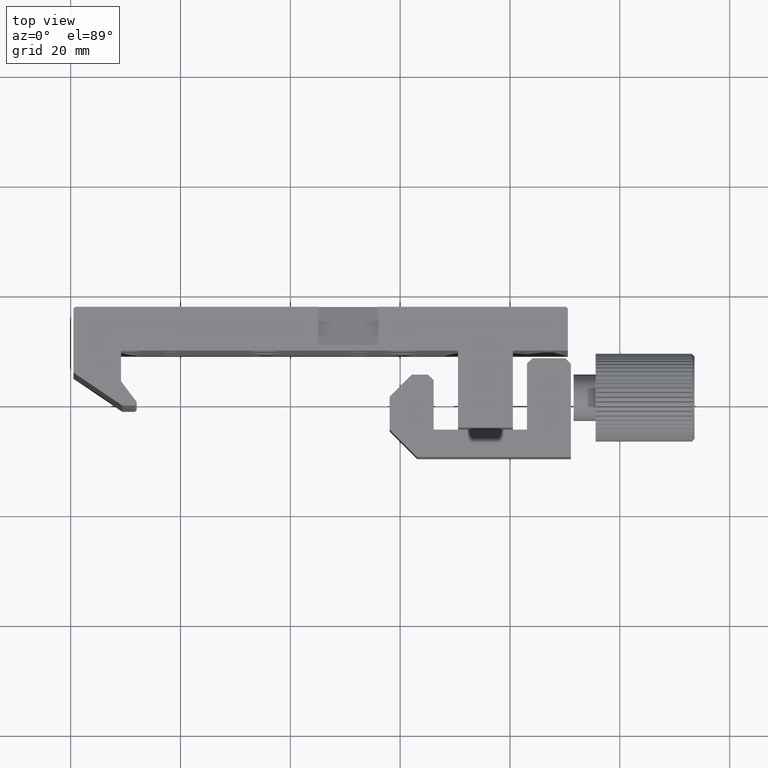
[diagram: clean part render]
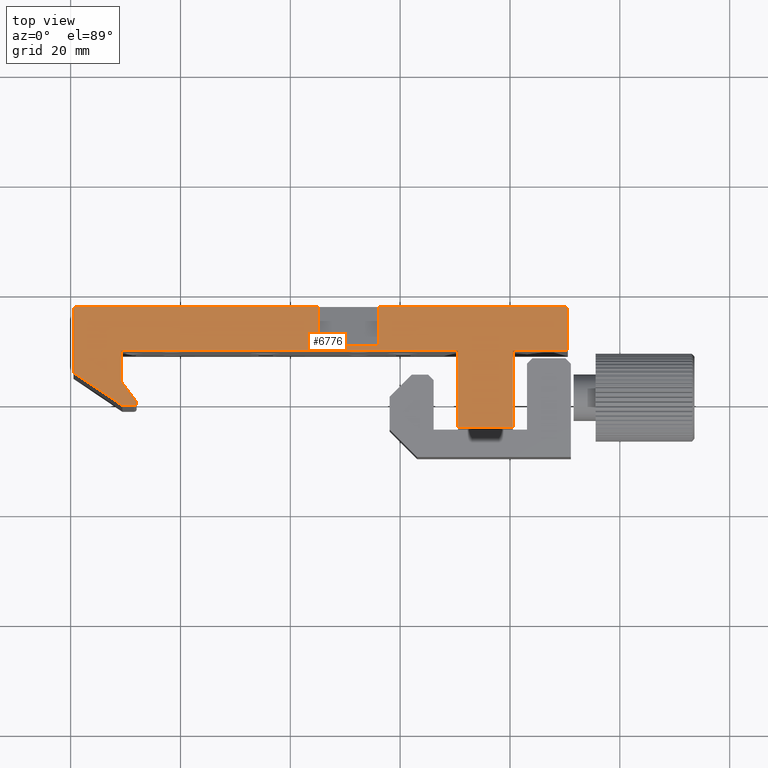
[diagram: same view with one face highlighted and labeled with its STEP entity id]
A machine part, top view. The second image highlights one B-rep face of the part: STEP entity #6776.
In plain terms, the highlighted planar face has unit normal (0, 0, 1).
Its self-contained STEP definition (entity closure, byte-faithful):
#731 = ORIENTED_EDGE ( 'NONE', *, *, #2520, .F. ) ;
#732 = ORIENTED_EDGE ( 'NONE', *, *, #2522, .T. ) ;
#733 = ORIENTED_EDGE ( 'NONE', *, *, #2512, .T. ) ;
#734 = ORIENTED_EDGE ( 'NONE', *, *, #2509, .T. ) ;
#735 = ORIENTED_EDGE ( 'NONE', *, *, #2506, .T. ) ;
#736 = ORIENTED_EDGE ( 'NONE', *, *, #2503, .T. ) ;
#737 = ORIENTED_EDGE ( 'NONE', *, *, #2500, .T. ) ;
#738 = ORIENTED_EDGE ( 'NONE', *, *, #2497, .T. ) ;
#739 = ORIENTED_EDGE ( 'NONE', *, *, #2523, .T. ) ;
#740 = ORIENTED_EDGE ( 'NONE', *, *, #2524, .T. ) ;
#741 = ORIENTED_EDGE ( 'NONE', *, *, #2493, .T. ) ;
#742 = ORIENTED_EDGE ( 'NONE', *, *, #2489, .T. ) ;
#743 = ORIENTED_EDGE ( 'NONE', *, *, #2486, .T. ) ;
#744 = ORIENTED_EDGE ( 'NONE', *, *, #2525, .T. ) ;
#745 = ORIENTED_EDGE ( 'NONE', *, *, #2526, .T. ) ;
#746 = ORIENTED_EDGE ( 'NONE', *, *, #2527, .T. ) ;
#747 = ORIENTED_EDGE ( 'NONE', *, *, #2528, .T. ) ;
#748 = ORIENTED_EDGE ( 'NONE', *, *, #2516, .F. ) ;
#749 = ORIENTED_EDGE ( 'NONE', *, *, #2518, .F. ) ;
#1162 = CARTESIAN_POINT ( 'NONE',  ( -70.57431584625358300, -0.9404695730432233200, 32.50000000000000000 ) ) ;
#1163 = CARTESIAN_POINT ( 'NONE',  ( -68.47252651145957700, -0.9404695730432233200, 32.50000000000000000 ) ) ;
#1164 = CARTESIAN_POINT ( 'NONE',  ( -68.47252651145957700, -0.4404695730432228700, 32.50000000000000000 ) ) ;
#1165 = DIRECTION ( 'NONE',  ( 0.0000000000000000000, 0.0000000000000000000, 1.000000000000000000 ) ) ;
#1166 = DIRECTION ( 'NONE',  ( 1.000000000000000000, 0.0000000000000000000, 0.0000000000000000000 ) ) ;
#1168 = CARTESIAN_POINT ( 'NONE',  ( -79.46968165733007100, 5.059530426956775400, 32.50000000000000000 ) ) ;
#1170 = DIRECTION ( 'NONE',  ( 1.000000000000000000, -0.0000000000000000000, -0.0000000000000000000 ) ) ;
#1175 = DIRECTION ( 'NONE',  ( 0.8290375725550430700, -0.5591929034707448000, -0.0000000000000000000 ) ) ;
#1180 = DIRECTION ( 'NONE',  ( -0.0000000000000000000, -1.000000000000000000, -0.0000000000000000000 ) ) ;
#1188 = CARTESIAN_POINT ( 'NONE',  ( -23.96968165733006700, 17.05953042695677600, 32.50000000000000000 ) ) ;
#1190 = CARTESIAN_POINT ( 'NONE',  ( -78.96968165733007100, 16.55953042695677600, 32.50000000000000000 ) ) ;
#1191 = DIRECTION ( 'NONE',  ( 0.0000000000000000000, 0.0000000000000000000, 1.000000000000000000 ) ) ;
#1192 = DIRECTION ( 'NONE',  ( 1.000000000000000000, 0.0000000000000000000, 0.0000000000000000000 ) ) ;
#1194 = CARTESIAN_POINT ( 'NONE',  ( -34.96968165733007100, 10.05953042695676900, 32.50000000000000000 ) ) ;
#1198 = DIRECTION ( 'NONE',  ( -0.0000000000000000000, 1.000000000000000000, -0.0000000000000000000 ) ) ;
#1200 = DIRECTION ( 'NONE',  ( -1.000000000000000000, -0.0000000000000000000, -0.0000000000000000000 ) ) ;
#1202 = DIRECTION ( 'NONE',  ( 1.000000000000000000, 0.0000000000000000000, 0.0000000000000000000 ) ) ;
#1203 = CARTESIAN_POINT ( 'NONE',  ( -78.96968165733007100, 17.05953042695677600, 32.50000000000000000 ) ) ;
#1205 = CARTESIAN_POINT ( 'NONE',  ( -34.96968165733007100, 17.05953042695677600, 32.50000000000000000 ) ) ;
#1206 = DIRECTION ( 'NONE',  ( 1.239088197126289600E-016, -1.000000000000000000, 0.0000000000000000000 ) ) ;
#1209 = CARTESIAN_POINT ( 'NONE',  ( -78.96968165733007100, 17.05953042695677600, 32.50000000000000000 ) ) ;
#1210 = DIRECTION ( 'NONE',  ( -1.000000000000000000, -0.0000000000000000000, -0.0000000000000000000 ) ) ;
#1211 = CARTESIAN_POINT ( 'NONE',  ( -70.81968165733007900, 9.059530426956767400, 32.50000000000000000 ) ) ;
#1212 = DIRECTION ( 'NONE',  ( -0.0000000000000000000, 1.000000000000000000, -0.0000000000000000000 ) ) ;
#1213 = CARTESIAN_POINT ( 'NONE',  ( -9.469681657330072600, 9.059530426956774500, 32.50000000000000000 ) ) ;
#1214 = DIRECTION ( 'NONE',  ( 1.000000000000000000, 1.131034051166622500E-016, -0.0000000000000000000 ) ) ;
#1215 = CARTESIAN_POINT ( 'NONE',  ( 10.53031834266993100, 9.059530426956774500, 32.50000000000000000 ) ) ;
#2486 = EDGE_CURVE ( 'NONE', #5945, #5951, #4555, .T. ) ;
#2489 = EDGE_CURVE ( 'NONE', #5942, #5945, #4560, .T. ) ;
#2493 = EDGE_CURVE ( 'NONE', #5941, #5942, #4564, .T. ) ;
#2497 = EDGE_CURVE ( 'NONE', #5937, #5947, #4577, .T. ) ;
#2500 = EDGE_CURVE ( 'NONE', #5934, #5937, #4579, .T. ) ;
#2503 = EDGE_CURVE ( 'NONE', #5932, #5934, #4585, .T. ) ;
#2506 = EDGE_CURVE ( 'NONE', #5930, #5932, #4589, .T. ) ;
#2509 = EDGE_CURVE ( 'NONE', #5928, #5930, #4595, .T. ) ;
#2512 = EDGE_CURVE ( 'NONE', #5926, #5928, #4601, .T. ) ;
#2516 = EDGE_CURVE ( 'NONE', #5922, #5927, #7196, .T. ) ;
#2518 = EDGE_CURVE ( 'NONE', #5925, #5922, #7199, .T. ) ;
#2520 = EDGE_CURVE ( 'NONE', #5919, #5925, #7208, .T. ) ;
#2522 = EDGE_CURVE ( 'NONE', #5919, #5926, #7212, .T. ) ;
#2523 = EDGE_CURVE ( 'NONE', #5947, #5921, #7214, .T. ) ;
#2524 = EDGE_CURVE ( 'NONE', #5921, #5941, #7216, .T. ) ;
#2525 = EDGE_CURVE ( 'NONE', #5951, #5917, #7218, .T. ) ;
#2526 = EDGE_CURVE ( 'NONE', #5917, #5916, #7220, .T. ) ;
#2527 = EDGE_CURVE ( 'NONE', #5916, #5915, #7222, .T. ) ;
#2528 = EDGE_CURVE ( 'NONE', #5915, #5927, #7224, .T. ) ;
#2757 = CARTESIAN_POINT ( 'NONE',  ( 10.53031834266993100, 16.55953042695677300, 32.50000000000000000 ) ) ;
#2768 = CARTESIAN_POINT ( 'NONE',  ( 10.03031834266993100, 17.05953042695677600, 32.50000000000000000 ) ) ;
#2769 = CARTESIAN_POINT ( 'NONE',  ( 10.53031834266993100, 9.059530426956774500, 32.50000000000000000 ) ) ;
#2770 = CARTESIAN_POINT ( 'NONE',  ( -34.96968165733007100, 17.05953042695677600, 32.50000000000000000 ) ) ;
#2771 = CARTESIAN_POINT ( 'NONE',  ( -70.81968165733007900, 9.059530426956767400, 32.50000000000000000 ) ) ;
#2772 = CARTESIAN_POINT ( 'NONE',  ( -23.96968165733006700, 10.05953042695676900, 32.50000000000000000 ) ) ;
#2775 = CARTESIAN_POINT ( 'NONE',  ( -34.96968165733007100, 10.05953042695676900, 32.50000000000000000 ) ) ;
#2776 = CARTESIAN_POINT ( 'NONE',  ( -78.96968165733007100, 17.05953042695677600, 32.50000000000000000 ) ) ;
#2777 = CARTESIAN_POINT ( 'NONE',  ( -23.96968165733006700, 17.05953042695677600, 32.50000000000000000 ) ) ;
#3874 = DIRECTION ( 'NONE',  ( 1.000000000000000000, 1.734723475976806800E-016, -0.0000000000000000000 ) ) ;
#3875 = CARTESIAN_POINT ( 'NONE',  ( 10.53031834266993100, 16.55953042695677300, 32.50000000000000000 ) ) ;
#3876 = DIRECTION ( 'NONE',  ( -0.0000000000000000000, 1.000000000000000000, -0.0000000000000000000 ) ) ;
#3877 = CARTESIAN_POINT ( 'NONE',  ( 10.03031834266993100, 16.55953042695677600, 32.50000000000000000 ) ) ;
#3878 = DIRECTION ( 'NONE',  ( 0.0000000000000000000, 0.0000000000000000000, 1.000000000000000000 ) ) ;
#3879 = DIRECTION ( 'NONE',  ( 1.000000000000000000, 0.0000000000000000000, 0.0000000000000000000 ) ) ;
#4161 = FACE_OUTER_BOUND ( 'NONE', #5745, .T. ) ;
#4555 = LINE ( 'NONE', #7040, #4561 ) ;
#4560 = LINE ( 'NONE', #7050, #4567 ) ;
#4561 = VECTOR ( 'NONE', #7051, 1000.000000000000000 ) ;
#4564 = LINE ( 'NONE', #7066, #4572 ) ;
#4567 = VECTOR ( 'NONE', #7057, 1000.000000000000000 ) ;
#4572 = VECTOR ( 'NONE', #7055, 1000.000000000000000 ) ;
#4577 = LINE ( 'NONE', #7061, #4582 ) ;
#4579 = CIRCLE ( 'NONE', #7172, 0.5000000000000004400 ) ;
#4582 = VECTOR ( 'NONE', #7072, 1000.000000000000100 ) ;
#4585 = LINE ( 'NONE', #1163, #4592 ) ;
#4589 = LINE ( 'NONE', #1162, #4598 ) ;
#4592 = VECTOR ( 'NONE', #1170, 1000.000000000000000 ) ;
#4595 = LINE ( 'NONE', #1168, #4604 ) ;
#4598 = VECTOR ( 'NONE', #1175, 1000.000000000000000 ) ;
#4601 = CIRCLE ( 'NONE', #7174, 0.5000000000000004400 ) ;
#4604 = VECTOR ( 'NONE', #1180, 1000.000000000000000 ) ;
#4903 = CARTESIAN_POINT ( 'NONE',  ( -79.46968165733007100, 5.059530426956775400, 32.50000000000000000 ) ) ;
#4905 = CARTESIAN_POINT ( 'NONE',  ( -70.57431584625358300, -0.9404695730432233200, 32.50000000000000000 ) ) ;
#4907 = CARTESIAN_POINT ( 'NONE',  ( -68.47252651145957700, -0.9404695730432233200, 32.50000000000000000 ) ) ;
#4910 = CARTESIAN_POINT ( 'NONE',  ( -68.07320875643593200, -0.1395620614671917700, 32.50000000000000000 ) ) ;
#4914 = CARTESIAN_POINT ( 'NONE',  ( -9.469681657330072600, 9.059530426956774500, 32.50000000000000000 ) ) ;
#4915 = CARTESIAN_POINT ( 'NONE',  ( -9.469681657330072600, -4.940469573043223800, 32.50000000000000000 ) ) ;
#4918 = CARTESIAN_POINT ( 'NONE',  ( 0.5303183426699289400, -4.940469573043223800, 32.50000000000000000 ) ) ;
#4920 = CARTESIAN_POINT ( 'NONE',  ( -70.81968165733007900, 3.505130579385170400, 32.50000000000000000 ) ) ;
#4924 = CARTESIAN_POINT ( 'NONE',  ( 0.5303183426699289400, 9.059530426956772700, 32.50000000000000000 ) ) ;
#5160 = CARTESIAN_POINT ( 'NONE',  ( -68.47252651145957700, -0.4404695730432228700, 32.50000000000000000 ) ) ;
#5167 = PLANE ( 'NONE',  #5199 ) ;
#5169 = DIRECTION ( 'NONE',  ( 0.0000000000000000000, 0.0000000000000000000, 1.000000000000000000 ) ) ;
#5170 = DIRECTION ( 'NONE',  ( 1.000000000000000000, 0.0000000000000000000, -0.0000000000000000000 ) ) ;
#5199 = AXIS2_PLACEMENT_3D ( 'NONE', #5160, #5169, #5170 ) ;
#5745 = EDGE_LOOP ( 'NONE', ( #731, #732, #733, #734, #735, #736, #737, #738, #739, #740, #741, #742, #743, #744, #745, #746, #747, #748, #749 ) ) ;
#5915 = VERTEX_POINT ( 'NONE', #2768 ) ;
#5916 = VERTEX_POINT ( 'NONE', #2757 ) ;
#5917 = VERTEX_POINT ( 'NONE', #2769 ) ;
#5919 = VERTEX_POINT ( 'NONE', #2770 ) ;
#5921 = VERTEX_POINT ( 'NONE', #2771 ) ;
#5922 = VERTEX_POINT ( 'NONE', #2772 ) ;
#5925 = VERTEX_POINT ( 'NONE', #2775 ) ;
#5926 = VERTEX_POINT ( 'NONE', #2776 ) ;
#5927 = VERTEX_POINT ( 'NONE', #2777 ) ;
#5928 = VERTEX_POINT ( 'NONE', #6645 ) ;
#5930 = VERTEX_POINT ( 'NONE', #4903 ) ;
#5932 = VERTEX_POINT ( 'NONE', #4905 ) ;
#5934 = VERTEX_POINT ( 'NONE', #4907 ) ;
#5937 = VERTEX_POINT ( 'NONE', #4910 ) ;
#5941 = VERTEX_POINT ( 'NONE', #4914 ) ;
#5942 = VERTEX_POINT ( 'NONE', #4915 ) ;
#5945 = VERTEX_POINT ( 'NONE', #4918 ) ;
#5947 = VERTEX_POINT ( 'NONE', #4920 ) ;
#5951 = VERTEX_POINT ( 'NONE', #4924 ) ;
#6645 = CARTESIAN_POINT ( 'NONE',  ( -79.46968165733007100, 16.55953042695677300, 32.50000000000000000 ) ) ;
#6776 = ADVANCED_FACE ( 'NONE', ( #4161 ), #5167, .T. ) ;
#7040 = CARTESIAN_POINT ( 'NONE',  ( 0.5303183426699289400, 9.059530426956772700, 32.50000000000000000 ) ) ;
#7050 = CARTESIAN_POINT ( 'NONE',  ( 0.5303183426699289400, -4.940469573043223800, 32.50000000000000000 ) ) ;
#7051 = DIRECTION ( 'NONE',  ( -0.0000000000000000000, 1.000000000000000000, -0.0000000000000000000 ) ) ;
#7055 = DIRECTION ( 'NONE',  ( -0.0000000000000000000, -1.000000000000000000, -0.0000000000000000000 ) ) ;
#7057 = DIRECTION ( 'NONE',  ( 1.000000000000000000, -0.0000000000000000000, -0.0000000000000000000 ) ) ;
#7061 = CARTESIAN_POINT ( 'NONE',  ( -70.81968165733007900, 3.505130579385170400, 32.50000000000000000 ) ) ;
#7066 = CARTESIAN_POINT ( 'NONE',  ( -9.469681657330072600, -4.940469573043223800, 32.50000000000000000 ) ) ;
#7072 = DIRECTION ( 'NONE',  ( -0.6018150231520469400, 0.7986355100472938300, -0.0000000000000000000 ) ) ;
#7172 = AXIS2_PLACEMENT_3D ( 'NONE', #1164, #1165, #1166 ) ;
#7174 = AXIS2_PLACEMENT_3D ( 'NONE', #1190, #1191, #1192 ) ;
#7175 = AXIS2_PLACEMENT_3D ( 'NONE', #3877, #3878, #3879 ) ;
#7196 = LINE ( 'NONE', #1188, #7203 ) ;
#7199 = LINE ( 'NONE', #1194, #7207 ) ;
#7203 = VECTOR ( 'NONE', #1198, 1000.000000000000000 ) ;
#7207 = VECTOR ( 'NONE', #1202, 1000.000000000000000 ) ;
#7208 = LINE ( 'NONE', #1205, #7211 ) ;
#7211 = VECTOR ( 'NONE', #1206, 1000.000000000000000 ) ;
#7212 = LINE ( 'NONE', #1209, #7215 ) ;
#7214 = LINE ( 'NONE', #1211, #7217 ) ;
#7215 = VECTOR ( 'NONE', #1210, 1000.000000000000000 ) ;
#7216 = LINE ( 'NONE', #1213, #7219 ) ;
#7217 = VECTOR ( 'NONE', #1212, 1000.000000000000000 ) ;
#7218 = LINE ( 'NONE', #1215, #7221 ) ;
#7219 = VECTOR ( 'NONE', #1214, 1000.000000000000000 ) ;
#7220 = LINE ( 'NONE', #3875, #7223 ) ;
#7221 = VECTOR ( 'NONE', #3874, 1000.000000000000000 ) ;
#7222 = CIRCLE ( 'NONE', #7175, 0.5000000000000004400 ) ;
#7223 = VECTOR ( 'NONE', #3876, 1000.000000000000000 ) ;
#7224 = LINE ( 'NONE', #1203, #7226 ) ;
#7226 = VECTOR ( 'NONE', #1200, 1000.000000000000000 ) ;